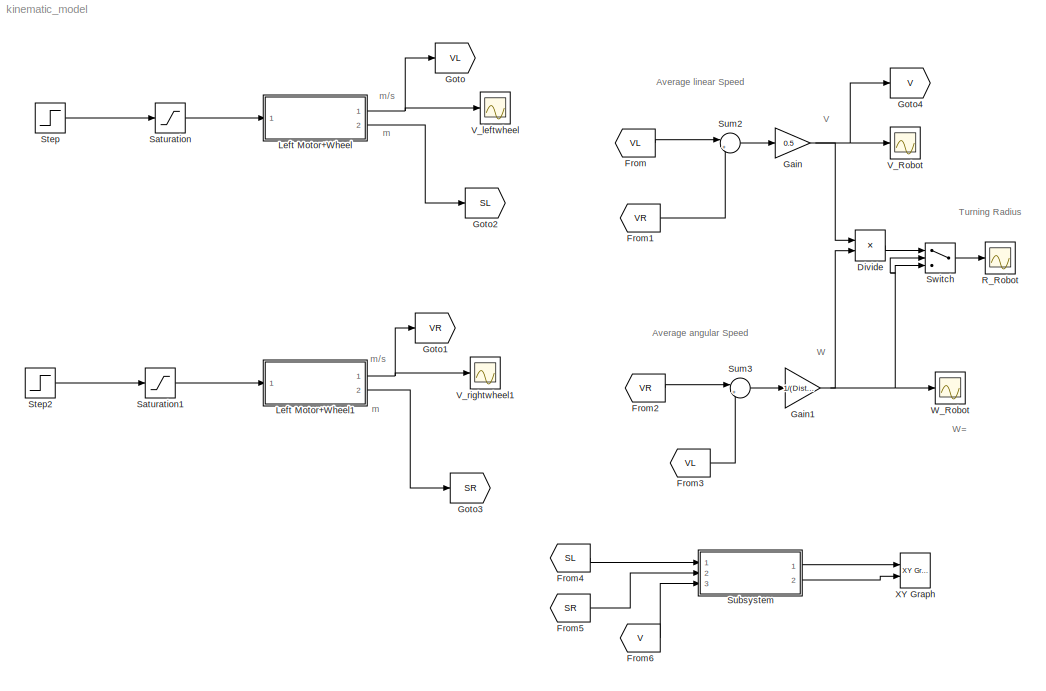
MODEL kinematic_model
KIND model
BLOCK [Product] Divide
  InputSameDT = off
  Inputs = */
  OutDataType = sfix(16)
  OutDataTypeMode = Inherit via internal rule
  OutDataTypeStr = Inherit: Inherit via internal rule
  OutScaling = 2^-10
  Ports = [2, 1]
  RndMeth = Floor
BLOCK [From] From
  CloseFcn = tagdialog Close
  GotoTag = VL
BLOCK [From] From1
  CloseFcn = tagdialog Close
  GotoTag = VR
BLOCK [From] From2
  CloseFcn = tagdialog Close
  GotoTag = VR
BLOCK [From] From3
  CloseFcn = tagdialog Close
  GotoTag = VL
BLOCK [From] From4
  CloseFcn = tagdialog Close
  GotoTag = SL
BLOCK [From] From5
  CloseFcn = tagdialog Close
  GotoTag = SR
BLOCK [From] From6
  CloseFcn = tagdialog Close
  GotoTag = V
BLOCK [Gain] Gain
  Gain = 0.5
  OutDataType = sfix(16)
  OutDataTypeMode = Inherit via internal rule
  OutDataTypeStr = Inherit: Inherit via internal rule
  OutScaling = 2^0
  ParamDataTypeStr = Inherit: Inherit via internal rule
  ParameterDataType = sfix(16)
  ParameterDataTypeMode = Inherit via internal rule
  ParameterScaling = 2^0
  SaturateOnIntegerOverflow = off
BLOCK [Gain] Gain1
  Gain = 1/(Dist_wheels)
  OutDataType = sfix(16)
  OutDataTypeMode = Inherit via internal rule
  OutDataTypeStr = Inherit: Inherit via internal rule
  OutScaling = 2^0
  ParamDataTypeStr = Inherit: Inherit via internal rule
  ParameterDataType = sfix(16)
  ParameterDataTypeMode = Inherit via internal rule
  ParameterScaling = 2^0
  SaturateOnIntegerOverflow = off
BLOCK [Goto] Goto
  GotoTag = VL
  TagVisibility = local
BLOCK [Goto] Goto1
  GotoTag = VR
  TagVisibility = local
BLOCK [Goto] Goto2
  GotoTag = SL
  TagVisibility = local
BLOCK [Goto] Goto3
  GotoTag = SR
  TagVisibility = local
BLOCK [Goto] Goto4
  GotoTag = V
  TagVisibility = local
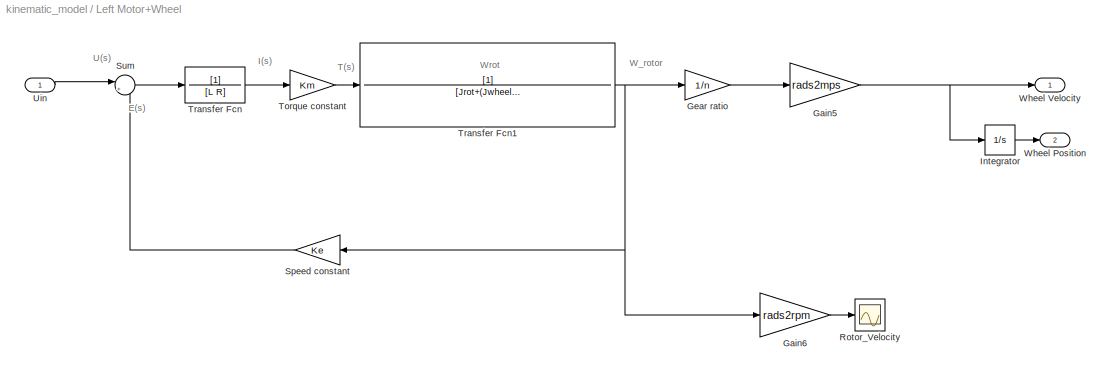
BLOCK [SubSystem] Left Motor+Wheel
  FunctionWithSeparateData = off
  MaskHideContents = off
  MinAlgLoopOccurrences = off
  Opaque = off
  Ports = [1, 2]
  PropExecContextOutsideSubsystem = off
  RTWSystemCode = Auto
  RequestExecContextInheritance = off
BLOCK [Gain] Left Motor+Wheel/Gain5
  Gain = rads2mps
  OutDataType = sfix(16)
  OutDataTypeMode = Inherit via internal rule
  OutDataTypeStr = Inherit: Inherit via internal rule
  OutScaling = 2^0
  ParamDataTypeStr = Inherit: Inherit via internal rule
  ParameterDataType = sfix(16)
  ParameterDataTypeMode = Inherit via internal rule
  ParameterScaling = 2^0
  SaturateOnIntegerOverflow = off
BLOCK [Gain] Left Motor+Wheel/Gain6
  Gain = rads2rpm
  OutDataType = sfix(16)
  OutDataTypeMode = Inherit via internal rule
  OutDataTypeStr = Inherit: Inherit via internal rule
  OutScaling = 2^0
  ParamDataTypeStr = Inherit: Inherit via internal rule
  ParameterDataType = sfix(16)
  ParameterDataTypeMode = Inherit via internal rule
  ParameterScaling = 2^0
  SaturateOnIntegerOverflow = off
BLOCK [Gain] Left Motor+Wheel/Gear ratio
  Gain = 1/n
  OutDataType = sfix(16)
  OutDataTypeMode = Inherit via internal rule
  OutDataTypeStr = Inherit: Inherit via internal rule
  OutScaling = 2^0
  ParamDataTypeStr = Inherit: Inherit via internal rule
  ParameterDataType = sfix(16)
  ParameterDataTypeMode = Inherit via internal rule
  ParameterScaling = 2^0
  SaturateOnIntegerOverflow = off
BLOCK [Integrator] Left Motor+Wheel/Integrator
  Ports = [1, 1]
BLOCK [Scope] Left Motor+Wheel/Rotor_Velocity
  DataFormat = StructureWithTime
  Floating = off
  LimitDataPoints = off
  NumInputPorts = 1
  Ports = [1]
  SampleTime = 0
  TimeRange = 1
  YMax = 0.0225
  YMin = 0.0025
  ZoomMode = xonly
BLOCK [Gain] Left Motor+Wheel/Speed constant
  Gain = Ke
  OutDataType = sfix(16)
  OutDataTypeMode = Inherit via internal rule
  OutDataTypeStr = Inherit: Inherit via internal rule
  OutScaling = 2^0
  ParamDataTypeStr = Inherit: Inherit via internal rule
  ParameterDataType = sfix(16)
  ParameterDataTypeMode = Inherit via internal rule
  ParameterScaling = 2^0
  SaturateOnIntegerOverflow = off
BLOCK [Sum] Left Motor+Wheel/Sum
  IconShape = round
  InputSameDT = off
  Inputs = |+-
  OutDataType = sfix(16)
  OutDataTypeMode = Inherit via internal rule
  OutDataTypeStr = Inherit: Inherit via internal rule
  OutScaling = 2^0
  Ports = [2, 1]
  SaturateOnIntegerOverflow = off
BLOCK [Gain] Left Motor+Wheel/Torque constant
  Gain = Km
  OutDataType = sfix(16)
  OutDataTypeMode = Inherit via internal rule
  OutDataTypeStr = Inherit: Inherit via internal rule
  OutScaling = 2^0
  ParamDataTypeStr = Inherit: Inherit via internal rule
  ParameterDataType = sfix(16)
  ParameterDataTypeMode = Inherit via internal rule
  ParameterScaling = 2^0
  SaturateOnIntegerOverflow = off
BLOCK [TransferFcn] Left Motor+Wheel/Transfer Fcn
  Denominator = [L R]
BLOCK [TransferFcn] Left Motor+Wheel/Transfer Fcn1
  Denominator = [Jrot+(Jwheel/(ro*n*n)) Brot+Bwheel/(ro*n*n)]
BLOCK [Inport] Left Motor+Wheel/Uin
  IconDisplay = Port number
  OutDataType = sfix(16)
  OutScaling = 2^0
BLOCK [Outport] Left Motor+Wheel/Wheel Position
  IconDisplay = Port number
  OutDataType = sfix(16)
  OutScaling = 2^0
  Port = 2
BLOCK [Outport] Left Motor+Wheel/Wheel Velocity
  IconDisplay = Port number
  OutDataType = sfix(16)
  OutScaling = 2^0
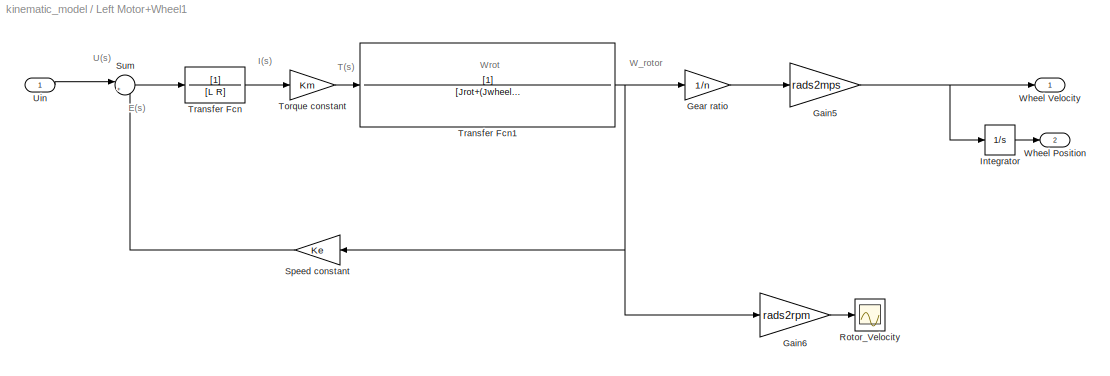
BLOCK [SubSystem] Left Motor+Wheel1
  FunctionWithSeparateData = off
  MaskHideContents = off
  MinAlgLoopOccurrences = off
  Opaque = off
  Ports = [1, 2]
  PropExecContextOutsideSubsystem = off
  RTWSystemCode = Auto
  RequestExecContextInheritance = off
BLOCK [Gain] Left Motor+Wheel1/Gain5
  Gain = rads2mps
  OutDataType = sfix(16)
  OutDataTypeMode = Inherit via internal rule
  OutDataTypeStr = Inherit: Inherit via internal rule
  OutScaling = 2^0
  ParamDataTypeStr = Inherit: Inherit via internal rule
  ParameterDataType = sfix(16)
  ParameterDataTypeMode = Inherit via internal rule
  ParameterScaling = 2^0
  SaturateOnIntegerOverflow = off
BLOCK [Gain] Left Motor+Wheel1/Gain6
  Gain = rads2rpm
  OutDataType = sfix(16)
  OutDataTypeMode = Inherit via internal rule
  OutDataTypeStr = Inherit: Inherit via internal rule
  OutScaling = 2^0
  ParamDataTypeStr = Inherit: Inherit via internal rule
  ParameterDataType = sfix(16)
  ParameterDataTypeMode = Inherit via internal rule
  ParameterScaling = 2^0
  SaturateOnIntegerOverflow = off
BLOCK [Gain] Left Motor+Wheel1/Gear ratio
  Gain = 1/n
  OutDataType = sfix(16)
  OutDataTypeMode = Inherit via internal rule
  OutDataTypeStr = Inherit: Inherit via internal rule
  OutScaling = 2^0
  ParamDataTypeStr = Inherit: Inherit via internal rule
  ParameterDataType = sfix(16)
  ParameterDataTypeMode = Inherit via internal rule
  ParameterScaling = 2^0
  SaturateOnIntegerOverflow = off
BLOCK [Integrator] Left Motor+Wheel1/Integrator
  Ports = [1, 1]
BLOCK [Scope] Left Motor+Wheel1/Rotor_Velocity
  DataFormat = StructureWithTime
  Floating = off
  LimitDataPoints = off
  NumInputPorts = 1
  Ports = [1]
  SampleTime = 0
  TimeRange = 1
  YMax = 0.0225
  YMin = 0.0025
  ZoomMode = xonly
BLOCK [Gain] Left Motor+Wheel1/Speed constant
  Gain = Ke
  OutDataType = sfix(16)
  OutDataTypeMode = Inherit via internal rule
  OutDataTypeStr = Inherit: Inherit via internal rule
  OutScaling = 2^0
  ParamDataTypeStr = Inherit: Inherit via internal rule
  ParameterDataType = sfix(16)
  ParameterDataTypeMode = Inherit via internal rule
  ParameterScaling = 2^0
  SaturateOnIntegerOverflow = off
BLOCK [Sum] Left Motor+Wheel1/Sum
  IconShape = round
  InputSameDT = off
  Inputs = |+-
  OutDataType = sfix(16)
  OutDataTypeMode = Inherit via internal rule
  OutDataTypeStr = Inherit: Inherit via internal rule
  OutScaling = 2^0
  Ports = [2, 1]
  SaturateOnIntegerOverflow = off
BLOCK [Gain] Left Motor+Wheel1/Torque constant
  Gain = Km
  OutDataType = sfix(16)
  OutDataTypeMode = Inherit via internal rule
  OutDataTypeStr = Inherit: Inherit via internal rule
  OutScaling = 2^0
  ParamDataTypeStr = Inherit: Inherit via internal rule
  ParameterDataType = sfix(16)
  ParameterDataTypeMode = Inherit via internal rule
  ParameterScaling = 2^0
  SaturateOnIntegerOverflow = off
BLOCK [TransferFcn] Left Motor+Wheel1/Transfer Fcn
  Denominator = [L R]
BLOCK [TransferFcn] Left Motor+Wheel1/Transfer Fcn1
  Denominator = [Jrot+(Jwheel/(ro*n*n)) Brot+Bwheel/(ro*n*n)]
BLOCK [Inport] Left Motor+Wheel1/Uin
  IconDisplay = Port number
  OutDataType = sfix(16)
  OutScaling = 2^0
BLOCK [Outport] Left Motor+Wheel1/Wheel Position
  IconDisplay = Port number
  OutDataType = sfix(16)
  OutScaling = 2^0
  Port = 2
BLOCK [Outport] Left Motor+Wheel1/Wheel Velocity
  IconDisplay = Port number
  OutDataType = sfix(16)
  OutScaling = 2^0
BLOCK [Scope] R_Robot
  DataFormat = StructureWithTime
  Floating = off
  LimitDataPoints = off
  NumInputPorts = 1
  Ports = [1]
  SampleTime = 0
  SaveName = ScopeData5
  TimeRange = 1
  YMax = 1.071
  YMin = 0.969
  ZoomMode = xonly
BLOCK [Saturate] Saturation
  LowerLimit = -11.1
  UpperLimit = 11.1
BLOCK [Saturate] Saturation1
  LowerLimit = -11.1
  UpperLimit = 11.1
BLOCK [Step] Step
  After = 8
  SampleTime = 0
  Time = 0.3
BLOCK [Step] Step2
  After = 9
  SampleTime = 0
  Time = 0.3
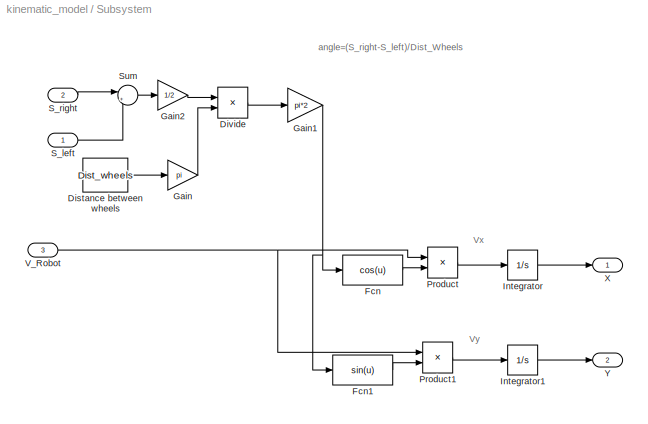
BLOCK [SubSystem] Subsystem
  FunctionWithSeparateData = off
  MaskHideContents = off
  MinAlgLoopOccurrences = off
  Opaque = off
  Ports = [3, 2]
  PropExecContextOutsideSubsystem = off
  RTWSystemCode = Auto
  RequestExecContextInheritance = off
BLOCK [Constant] Subsystem/Distance between wheels
  OutDataType = sfix(16)
  OutScaling = 2^0
  Value = Dist_wheels
BLOCK [Product] Subsystem/Divide
  InputSameDT = off
  Inputs = */
  OutDataType = sfix(16)
  OutDataTypeMode = Inherit via internal rule
  OutDataTypeStr = Inherit: Inherit via internal rule
  OutScaling = 2^-10
  Ports = [2, 1]
  RndMeth = Floor
  SaturateOnIntegerOverflow = off
BLOCK [Fcn] Subsystem/Fcn
  Expr = cos(u)
BLOCK [Fcn] Subsystem/Fcn1
  Expr = sin(u)
BLOCK [Gain] Subsystem/Gain
  Gain = pi
  OutDataType = sfix(16)
  OutDataTypeMode = Inherit via internal rule
  OutDataTypeStr = Inherit: Inherit via internal rule
  OutScaling = 2^0
  ParamDataTypeStr = Inherit: Inherit via internal rule
  ParameterDataType = sfix(16)
  ParameterDataTypeMode = Inherit via internal rule
  ParameterScaling = 2^0
  SaturateOnIntegerOverflow = off
BLOCK [Gain] Subsystem/Gain1
  Gain = pi*2
  OutDataType = sfix(16)
  OutDataTypeMode = Inherit via internal rule
  OutDataTypeStr = Inherit: Inherit via internal rule
  OutScaling = 2^0
  ParamDataTypeStr = Inherit: Inherit via internal rule
  ParameterDataType = sfix(16)
  ParameterDataTypeMode = Inherit via internal rule
  ParameterScaling = 2^0
  SaturateOnIntegerOverflow = off
BLOCK [Gain] Subsystem/Gain2
  Gain = 1/2
  OutDataType = sfix(16)
  OutDataTypeMode = Inherit via internal rule
  OutDataTypeStr = Inherit: Inherit via internal rule
  OutScaling = 2^0
  ParamDataTypeStr = Inherit: Inherit via internal rule
  ParameterDataType = sfix(16)
  ParameterDataTypeMode = Inherit via internal rule
  ParameterScaling = 2^0
  SaturateOnIntegerOverflow = off
BLOCK [Integrator] Subsystem/Integrator
  Ports = [1, 1]
BLOCK [Integrator] Subsystem/Integrator1
  Ports = [1, 1]
BLOCK [Product] Subsystem/Product
  InputSameDT = off
  OutDataType = sfix(16)
  OutDataTypeMode = Inherit via internal rule
  OutDataTypeStr = Inherit: Inherit via internal rule
  OutScaling = 2^0
  Ports = [2, 1]
  SaturateOnIntegerOverflow = off
BLOCK [Product] Subsystem/Product1
  InputSameDT = off
  OutDataType = sfix(16)
  OutDataTypeMode = Inherit via internal rule
  OutDataTypeStr = Inherit: Inherit via internal rule
  OutScaling = 2^0
  Ports = [2, 1]
  SaturateOnIntegerOverflow = off
BLOCK [Inport] Subsystem/S_left
  IconDisplay = Port number
  OutDataType = sfix(16)
  OutScaling = 2^0
BLOCK [Inport] Subsystem/S_right
  IconDisplay = Port number
  OutDataType = sfix(16)
  OutScaling = 2^0
  Port = 2
BLOCK [Sum] Subsystem/Sum
  IconShape = round
  InputSameDT = off
  Inputs = |+-
  OutDataType = sfix(16)
  OutDataTypeMode = Inherit via internal rule
  OutDataTypeStr = Inherit: Inherit via internal rule
  OutScaling = 2^0
  Ports = [2, 1]
  SaturateOnIntegerOverflow = off
BLOCK [Inport] Subsystem/V_Robot
  IconDisplay = Port number
  OutDataType = sfix(16)
  OutScaling = 2^0
  Port = 3
BLOCK [Outport] Subsystem/X
  IconDisplay = Port number
  OutDataType = sfix(16)
  OutScaling = 2^0
BLOCK [Outport] Subsystem/Y
  IconDisplay = Port number
  OutDataType = sfix(16)
  OutScaling = 2^0
  Port = 2
BLOCK [Sum] Sum2
  IconShape = round
  InputSameDT = off
  Inputs = |++
  OutDataType = sfix(16)
  OutDataTypeMode = Inherit via internal rule
  OutDataTypeStr = Inherit: Inherit via internal rule
  OutScaling = 2^0
  Ports = [2, 1]
  SaturateOnIntegerOverflow = off
BLOCK [Sum] Sum3
  IconShape = round
  InputSameDT = off
  Inputs = |+-
  OutDataType = sfix(16)
  OutDataTypeMode = Inherit via internal rule
  OutDataTypeStr = Inherit: Inherit via internal rule
  OutScaling = 2^0
  Ports = [2, 1]
  SaturateOnIntegerOverflow = off
BLOCK [Switch] Switch
  Criteria = u2 ~= 0
  InputSameDT = off
  SaturateOnIntegerOverflow = off
BLOCK [Scope] V_Robot
  DataFormat = StructureWithTime
  Floating = off
  LimitDataPoints = off
  NumInputPorts = 1
  Ports = [1]
  SampleTime = 0
  SaveName = ScopeData3
  TimeRange = 1
  YMax = 3.24317
  YMin = 3.2428
  ZoomMode = xonly
BLOCK [Scope] V_leftwheel
  DataFormat = StructureWithTime
  Floating = off
  LimitDataPoints = off
  NumInputPorts = 1
  Ports = [1]
  SampleTime = 0
  SaveName = ScopeData1
  TimeRange = 1.4
  YMax = 3.0525
  YMin = 3.0495
  ZoomMode = xonly
BLOCK [Scope] V_rightwheel1
  DataFormat = StructureWithTime
  Floating = off
  LimitDataPoints = off
  NumInputPorts = 1
  Ports = [1]
  SampleTime = 0
  SaveName = ScopeData2
  TimeRange = 1
  YMax = 3.43393
  YMin = 3.43392
  ZoomMode = yonly
BLOCK [Scope] W_Robot
  DataFormat = StructureWithTime
  Floating = off
  LimitDataPoints = off
  NumInputPorts = 1
  Ports = [1]
  SampleTime = 0
  SaveName = ScopeData4
  TimeRange = 1
  YMax = 6.35915
  YMin = 6.35911
  ZoomMode = xonly
BLOCK [Reference] XY Graph  REF=simulink/Sinks/XY Graph
  FunctionWithSeparateData = off
  Ports = [2]
  RTWMemSecDataConstants = Inherit from model
  RTWMemSecDataInternal = Inherit from model
  RTWMemSecDataParameters = Inherit from model
  RTWMemSecFuncExecute = Inherit from model
  RTWMemSecFuncInitTerm = Inherit from model
  ShowPortLabels = FromPortIcon
  SourceBlock = simulink/Sinks/XY Graph
  SourceType = XY scope.
  SystemSampleTime = -1
  st = -1
  xmax = 3
  xmin = -3
  ymax = 3
  ymin = -3
ANNOTATION (root): Average angular Speed
ANNOTATION (root): Average linear Speed
ANNOTATION (root): Turning Radius
ANNOTATION (root): V
ANNOTATION (root): W
ANNOTATION (root): W=
ANNOTATION (root): m
ANNOTATION (root): m/s
ANNOTATION Left Motor+Wheel: E(s)
ANNOTATION Left Motor+Wheel: I(s)
ANNOTATION Left Motor+Wheel: T(s)
ANNOTATION Left Motor+Wheel: U(s)
ANNOTATION Left Motor+Wheel: W_rotor
ANNOTATION Left Motor+Wheel: Wrot
ANNOTATION Left Motor+Wheel1: E(s)
ANNOTATION Left Motor+Wheel1: I(s)
ANNOTATION Left Motor+Wheel1: T(s)
ANNOTATION Left Motor+Wheel1: U(s)
ANNOTATION Left Motor+Wheel1: W_rotor
ANNOTATION Left Motor+Wheel1: Wrot
ANNOTATION Subsystem: Vx
ANNOTATION Subsystem: Vy
ANNOTATION Subsystem: angle=(S_right-S_left)/Dist_Wheels
LINE Divide:1 -> Switch:1
LINE From1:1 -> Sum2:2
LINE From2:1 -> Sum3:1
LINE From3:1 -> Sum3:2
LINE From4:1 -> Subsystem:1
LINE From5:1 -> Subsystem:2
LINE From6:1 -> Subsystem:3
LINE From:1 -> Sum2:1
NET Gain1:1 -> Divide:2, Switch:2, Switch:3, W_Robot:1
NET Gain:1 -> Divide:1, Goto4:1, V_Robot:1
NET Left Motor+Wheel/Gain5:1 -> Left Motor+Wheel/Integrator:1, Left Motor+Wheel/Wheel Velocity:1
LINE Left Motor+Wheel/Gain6:1 -> Left Motor+Wheel/Rotor_Velocity:1
LINE Left Motor+Wheel/Gear ratio:1 -> Left Motor+Wheel/Gain5:1
LINE Left Motor+Wheel/Integrator:1 -> Left Motor+Wheel/Wheel Position:1
LINE Left Motor+Wheel/Speed constant:1 -> Left Motor+Wheel/Sum:2
LINE Left Motor+Wheel/Sum:1 -> Left Motor+Wheel/Transfer Fcn:1
LINE Left Motor+Wheel/Torque constant:1 -> Left Motor+Wheel/Transfer Fcn1:1
NET Left Motor+Wheel/Transfer Fcn1:1 -> Left Motor+Wheel/Gain6:1, Left Motor+Wheel/Gear ratio:1, Left Motor+Wheel/Speed constant:1
LINE Left Motor+Wheel/Transfer Fcn:1 -> Left Motor+Wheel/Torque constant:1
LINE Left Motor+Wheel/Uin:1 -> Left Motor+Wheel/Sum:1
NET Left Motor+Wheel1/Gain5:1 -> Left Motor+Wheel1/Integrator:1, Left Motor+Wheel1/Wheel Velocity:1
LINE Left Motor+Wheel1/Gain6:1 -> Left Motor+Wheel1/Rotor_Velocity:1
LINE Left Motor+Wheel1/Gear ratio:1 -> Left Motor+Wheel1/Gain5:1
LINE Left Motor+Wheel1/Integrator:1 -> Left Motor+Wheel1/Wheel Position:1
LINE Left Motor+Wheel1/Speed constant:1 -> Left Motor+Wheel1/Sum:2
LINE Left Motor+Wheel1/Sum:1 -> Left Motor+Wheel1/Transfer Fcn:1
LINE Left Motor+Wheel1/Torque constant:1 -> Left Motor+Wheel1/Transfer Fcn1:1
NET Left Motor+Wheel1/Transfer Fcn1:1 -> Left Motor+Wheel1/Gain6:1, Left Motor+Wheel1/Gear ratio:1, Left Motor+Wheel1/Speed constant:1
LINE Left Motor+Wheel1/Transfer Fcn:1 -> Left Motor+Wheel1/Torque constant:1
LINE Left Motor+Wheel1/Uin:1 -> Left Motor+Wheel1/Sum:1
NET Left Motor+Wheel1:1 -> Goto1:1, V_rightwheel1:1
LINE Left Motor+Wheel1:2 -> Goto3:1
NET Left Motor+Wheel:1 -> Goto:1, V_leftwheel:1
LINE Left Motor+Wheel:2 -> Goto2:1
LINE Saturation1:1 -> Left Motor+Wheel1:1
LINE Saturation:1 -> Left Motor+Wheel:1
LINE Step2:1 -> Saturation1:1
LINE Step:1 -> Saturation:1
LINE Subsystem/Distance between wheels:1 -> Subsystem/Gain:1
LINE Subsystem/Divide:1 -> Subsystem/Gain1:1
LINE Subsystem/Fcn1:1 -> Subsystem/Product1:2
LINE Subsystem/Fcn:1 -> Subsystem/Product:2
NET Subsystem/Gain1:1 -> Subsystem/Fcn1:1, Subsystem/Fcn:1
LINE Subsystem/Gain2:1 -> Subsystem/Divide:1
LINE Subsystem/Gain:1 -> Subsystem/Divide:2
LINE Subsystem/Integrator1:1 -> Subsystem/Y:1
LINE Subsystem/Integrator:1 -> Subsystem/X:1
LINE Subsystem/Product1:1 -> Subsystem/Integrator1:1
LINE Subsystem/Product:1 -> Subsystem/Integrator:1
LINE Subsystem/S_left:1 -> Subsystem/Sum:2
LINE Subsystem/S_right:1 -> Subsystem/Sum:1
LINE Subsystem/Sum:1 -> Subsystem/Gain2:1
NET Subsystem/V_Robot:1 -> Subsystem/Product1:1, Subsystem/Product:1
LINE Subsystem:1 -> XY Graph:1
LINE Subsystem:2 -> XY Graph:2
LINE Sum2:1 -> Gain:1
LINE Sum3:1 -> Gain1:1
LINE Switch:1 -> R_Robot:1
note: NET lines group one-source signal fan-out (src -> all destinations, sorted); 1:1 wires keep LINE
